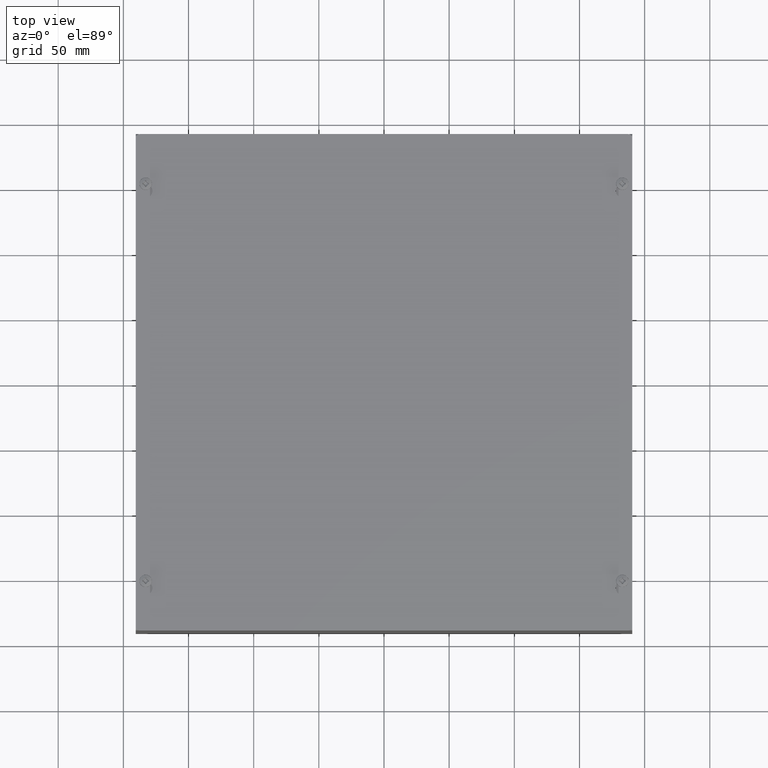
[diagram: clean part render]
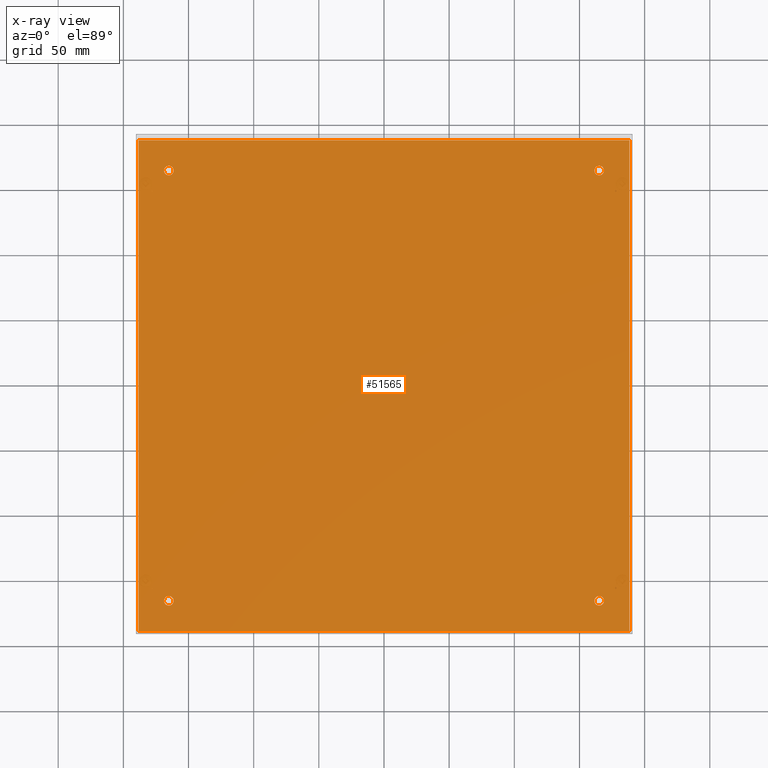
[diagram: x-ray — body ghosted, one internal face saturated and labeled with its STEP entity id]
A machine part, top view, then the same camera in x-ray: the body is ghosted and one INTERNAL B-rep face — a face not visible from any outside direction — is saturated and labeled: STEP entity #51565.
In plain terms, the highlighted planar face has unit normal (0, 0, 1).
Its self-contained STEP definition (entity closure, byte-faithful):
#4198=FACE_BOUND('',#9621,.T.);
#4199=FACE_BOUND('',#9622,.T.);
#4200=FACE_BOUND('',#9623,.T.);
#4201=FACE_BOUND('',#9624,.T.);
#4761=PLANE('',#54890);
#6738=FACE_OUTER_BOUND('',#9620,.T.);
#9620=EDGE_LOOP('',(#38458,#38459,#38460,#38461));
#9621=EDGE_LOOP('',(#38462));
#9622=EDGE_LOOP('',(#38463));
#9623=EDGE_LOOP('',(#38464));
#9624=EDGE_LOOP('',(#38465));
#13134=LINE('',#70820,#18575);
#13135=LINE('',#70822,#18576);
#13139=LINE('',#70828,#18580);
#13140=LINE('',#70829,#18581);
#18575=VECTOR('',#59426,0.393700787401575);
#18576=VECTOR('',#59429,0.393700787401575);
#18580=VECTOR('',#59437,0.393700787401575);
#18581=VECTOR('',#59438,0.393700787401575);
#23069=CIRCLE('',#54061,0.145);
#23071=CIRCLE('',#54064,0.145);
#23073=CIRCLE('',#54067,0.145);
#23075=CIRCLE('',#54070,0.145);
#23663=VERTEX_POINT('',#67782);
#23665=VERTEX_POINT('',#67788);
#23667=VERTEX_POINT('',#67794);
#23669=VERTEX_POINT('',#67800);
#24477=VERTEX_POINT('',#70229);
#24490=VERTEX_POINT('',#70294);
#24510=VERTEX_POINT('',#70392);
#24512=VERTEX_POINT('',#70398);
#28556=EDGE_CURVE('',#23663,#23663,#23069,.T.);
#28559=EDGE_CURVE('',#23665,#23665,#23071,.T.);
#28562=EDGE_CURVE('',#23667,#23667,#23073,.T.);
#28565=EDGE_CURVE('',#23669,#23669,#23075,.T.);
#29875=EDGE_CURVE('',#24490,#24512,#13134,.T.);
#29876=EDGE_CURVE('',#24510,#24490,#13135,.T.);
#29880=EDGE_CURVE('',#24512,#24477,#13139,.T.);
#29881=EDGE_CURVE('',#24477,#24510,#13140,.T.);
#38458=ORIENTED_EDGE('',*,*,#29875,.T.);
#38459=ORIENTED_EDGE('',*,*,#29880,.T.);
#38460=ORIENTED_EDGE('',*,*,#29881,.T.);
#38461=ORIENTED_EDGE('',*,*,#29876,.T.);
#38462=ORIENTED_EDGE('',*,*,#28556,.T.);
#38463=ORIENTED_EDGE('',*,*,#28559,.T.);
#38464=ORIENTED_EDGE('',*,*,#28562,.T.);
#38465=ORIENTED_EDGE('',*,*,#28565,.T.);
#51565=ADVANCED_FACE('',(#6738,#4198,#4199,#4200,#4201),#4761,.T.);
#54061=AXIS2_PLACEMENT_3D('',#67783,#56825,#56826);
#54064=AXIS2_PLACEMENT_3D('',#67789,#56832,#56833);
#54067=AXIS2_PLACEMENT_3D('',#67795,#56839,#56840);
#54070=AXIS2_PLACEMENT_3D('',#67801,#56846,#56847);
#54890=AXIS2_PLACEMENT_3D('',#70827,#59435,#59436);
#56825=DIRECTION('center_axis',(0.,0.,-1.));
#56826=DIRECTION('ref_axis',(1.,0.,0.));
#56832=DIRECTION('center_axis',(0.,0.,-1.));
#56833=DIRECTION('ref_axis',(1.,0.,0.));
#56839=DIRECTION('center_axis',(0.,0.,-1.));
#56840=DIRECTION('ref_axis',(1.,0.,0.));
#56846=DIRECTION('center_axis',(0.,0.,-1.));
#56847=DIRECTION('ref_axis',(1.,0.,0.));
#59426=DIRECTION('',(0.,-1.,0.));
#59429=DIRECTION('',(-1.,0.,0.));
#59435=DIRECTION('center_axis',(0.,0.,1.));
#59436=DIRECTION('ref_axis',(1.,0.,0.));
#59437=DIRECTION('',(1.,0.,0.));
#59438=DIRECTION('',(0.,1.,0.));
#67782=CARTESIAN_POINT('',(6.355,-6.5,0.055));
#67783=CARTESIAN_POINT('Origin',(6.5,-6.5,0.055));
#67788=CARTESIAN_POINT('',(6.355,6.5,0.055));
#67789=CARTESIAN_POINT('Origin',(6.5,6.5,0.055));
#67794=CARTESIAN_POINT('',(-6.645,6.5,0.055));
#67795=CARTESIAN_POINT('Origin',(-6.5,6.5,0.055));
#67800=CARTESIAN_POINT('',(-6.645,-6.5,0.055));
#67801=CARTESIAN_POINT('Origin',(-6.5,-6.5,0.055));
#70229=CARTESIAN_POINT('',(7.414,-7.414,0.055));
#70294=CARTESIAN_POINT('',(-7.414,7.414,0.055));
#70392=CARTESIAN_POINT('',(7.414,7.414,0.055));
#70398=CARTESIAN_POINT('',(-7.414,-7.414,0.055));
#70820=CARTESIAN_POINT('',(-7.414,3.707,0.055));
#70822=CARTESIAN_POINT('',(3.75,7.414,0.055));
#70827=CARTESIAN_POINT('Origin',(0.,0.,0.055));
#70828=CARTESIAN_POINT('',(-3.75,-7.414,0.055));
#70829=CARTESIAN_POINT('',(7.414,-3.707,0.055));